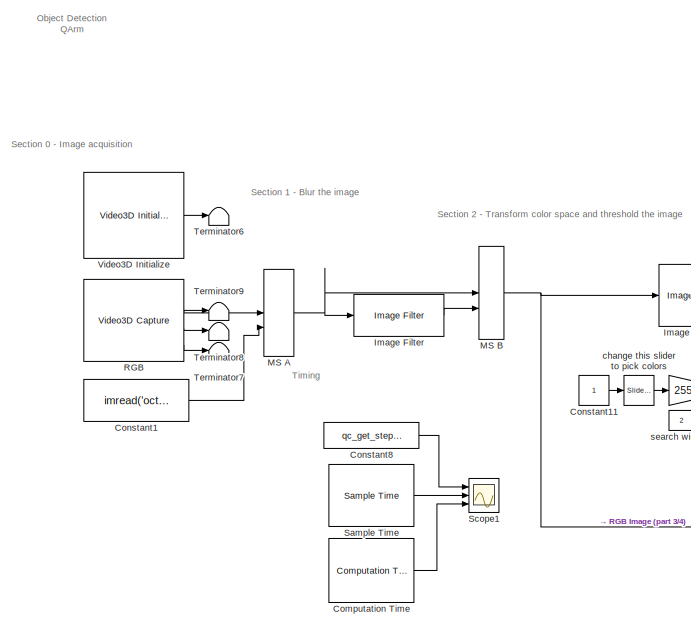
[diagram: root canvas - part 1/4, left side, full height]
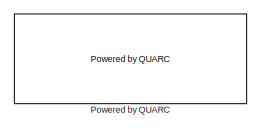
[diagram: root canvas - part 2/4, top right region]
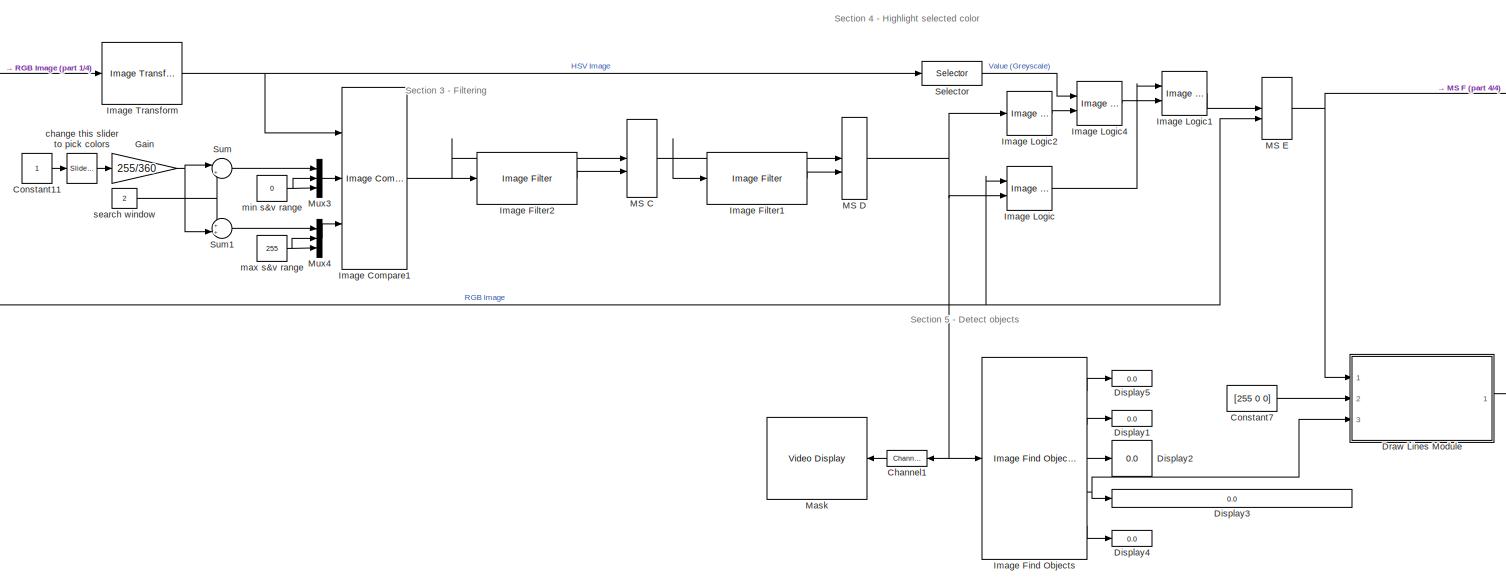
[diagram: root canvas - part 3/4, central region]
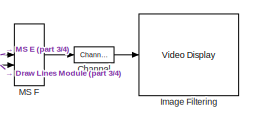
[diagram: root canvas - part 4/4, bottom right region]
MODEL slx_b4bb0a352ea1
KIND model
CONFIG AbsTol = auto
CONFIG EnableMultiTasking = on
CONFIG FixedStep = 1/30
CONFIG MaxStep = auto
CONFIG MinStep = auto
CONFIG RelTol = 1e-3
CONFIG SampleTimeConstraint = Unconstrained
CONFIG SolverName = ode4
CONFIG StartTime = 0.0
CONFIG StopTime = inf
BLOCK [Reference] Channel  REF=quarc_library/Signal Routing/Channel
  Ports = [1, 1]
  SourceBlock = quarc_library/Signal Routing/Channel
  SourceProductName = QUARC Targets
  SourceType = Channel
BLOCK [Reference] Channel1  REF=quarc_library/Signal Routing/Channel
  NameLocation = top
  Ports = [1, 1]
  SourceBlock = quarc_library/Signal Routing/Channel
  SourceProductName = QUARC Targets
  SourceType = Channel
BLOCK [Reference] Computation Time  REF=quarc_library/Sources/Time/Computation Time
  Ports = [0, 1]
  SourceBlock = quarc_library/Sources/Time/Computation Time
  SourceProductName = QUARC Targets
  SourceType = Computation Time
BLOCK [Constant] Constant1
  Value = imread('octopus.jpg');
BLOCK [Constant] Constant11
BLOCK [Constant] Constant7
  Value = [255 0 0]
BLOCK [Constant] Constant8
  Value = qc_get_step_size
BLOCK [Display] Display1
  Decimation = 1
  Ports = [1]
BLOCK [Display] Display2
  Decimation = 1
  Ports = [1]
BLOCK [Display] Display3
  Decimation = 1
  Ports = [1]
BLOCK [Display] Display4
  Decimation = 1
  Ports = [1]
BLOCK [Display] Display5
  Decimation = 1
  Ports = [1]
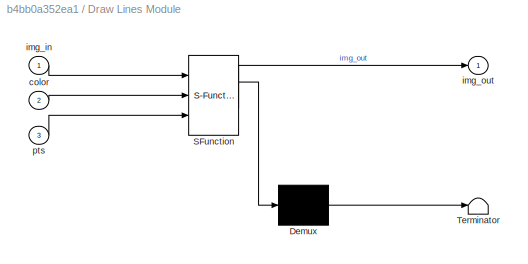
BLOCK [SubSystem] Draw Lines Module
  ErrorFcn = Stateflow.Translate.translate
  PermitHierarchicalResolution = ExplicitOnly
  Ports = [3, 1]
  SFBlockType = MATLAB Function
  TreatAsAtomicUnit = on
BLOCK [Demux] Draw Lines Module/ Demux 
  Outputs = 1
  Ports = [1, 1]
BLOCK [S-Function] Draw Lines Module/ SFunction 
  EnableBusSupport = off
  FunctionName = sf_sfun
  PortCounts = [3 2]
  Ports = [3, 2]
  SFcnIsStateOwnerBlock = off
  SFunctionDeploymentMode = off
  Tag = Stateflow S-Function 1
BLOCK [Terminator] Draw Lines Module/ Terminator 
BLOCK [Inport] Draw Lines Module/color
  Port = 2
BLOCK [Inport] Draw Lines Module/img_in
BLOCK [Outport] Draw Lines Module/img_out
  VectorParamsAs1DForOutWhenUnconnected = off
BLOCK [Inport] Draw Lines Module/pts
  Port = 3
BLOCK [Gain] Gain
  Gain = 255/360
  NameLocation = top
BLOCK [Reference] Image Compare1  REF=quarc_library/Image Processing/Generic/Image Compare
  Ports = [3, 1]
  SourceBlock = quarc_library/Image Processing/Generic/Image Compare
  SourceProductName = QUARC Targets
  SourceType = Image Compare
BLOCK [Reference] Image Filter  REF=quarc_library/Image Processing/Generic/Image Filter
  AttributesFormatString = (%<filter_type>)
  Ports = [1, 1]
  SourceBlock = quarc_library/Image Processing/Generic/Image Filter
  SourceProductName = QUARC Targets
  SourceType = Image Filter
BLOCK [Reference] Image Filter1  REF=quarc_library/Image Processing/Generic/Image Filter
  AttributesFormatString = (%<filter_type>)
  Ports = [1, 1]
  SourceBlock = quarc_library/Image Processing/Generic/Image Filter
  SourceProductName = QUARC Targets
  SourceType = Image Filter
BLOCK [Reference] Image Filter2  REF=quarc_library/Image Processing/Generic/Image Filter
  AttributesFormatString = (%<filter_type>)
  Ports = [1, 1]
  SourceBlock = quarc_library/Image Processing/Generic/Image Filter
  SourceProductName = QUARC Targets
  SourceType = Image Filter
BLOCK [Reference] Image Filtering   REF=quarc_library/Multimedia/Video Display
  Ports = [1]
  SourceBlock = quarc_library/Multimedia/Video Display
  SourceProductName = QUARC Targets
  SourceType = Video Display
  Tag = object_detection_/Image Filtering
  UserDataPersistent = on
BLOCK [Reference] Image Find Objects  REF=quarc_library/Image Processing/Generic/Image Find Objects
  Ports = [1, 5]
  SourceBlock = quarc_library/Image Processing/Generic/Image Find Objects
  SourceProductName = QUARC Targets
  SourceType = Image Find Objects
BLOCK [Reference] Image Logic  REF=quarc_library/Image Processing/Generic/Image Logic
  AttributesFormatString = (%<algorithm>)
  Ports = [2, 1]
  SourceBlock = quarc_library/Image Processing/Generic/Image Logic
  SourceProductName = QUARC Targets
  SourceType = Image Logic
BLOCK [Reference] Image Logic1  REF=quarc_library/Image Processing/Generic/Image Logic
  AttributesFormatString = (%<algorithm>)
  Ports = [2, 1]
  SourceBlock = quarc_library/Image Processing/Generic/Image Logic
  SourceProductName = QUARC Targets
  SourceType = Image Logic
BLOCK [Reference] Image Logic2  REF=quarc_library/Image Processing/Generic/Image Logic
  AttributesFormatString = (%<algorithm>)
  Ports = [1, 1]
  SourceBlock = quarc_library/Image Processing/Generic/Image Logic
  SourceProductName = QUARC Targets
  SourceType = Image Logic
BLOCK [Reference] Image Logic4  REF=quarc_library/Image Processing/Generic/Image Logic
  AttributesFormatString = (%<algorithm>)
  Ports = [2, 1]
  SourceBlock = quarc_library/Image Processing/Generic/Image Logic
  SourceProductName = QUARC Targets
  SourceType = Image Logic
BLOCK [Reference] Image Transform  REF=quarc_library/Image Processing/Generic/Image Transform
  AttributesFormatString = (%<algorithm>)
  Ports = [1, 1]
  SourceBlock = quarc_library/Image Processing/Generic/Image Transform
  SourceProductName = QUARC Targets
  SourceType = Image Transform
BLOCK [ManualSwitch] MS A
  NameLocation = top
BLOCK [ManualSwitch] MS B
  NameLocation = top
BLOCK [ManualSwitch] MS C
BLOCK [ManualSwitch] MS D
  NameLocation = top
BLOCK [ManualSwitch] MS E
  CurrentSetting = 0
  NameLocation = top
BLOCK [ManualSwitch] MS F
  NameLocation = top
BLOCK [Reference] Mask  REF=quarc_library/Multimedia/Video Display
  NameLocation = top
  Ports = [1]
  SourceBlock = quarc_library/Multimedia/Video Display
  SourceProductName = QUARC Targets
  SourceType = Video Display
  Tag = object_detection_/Mask
  UserDataPersistent = on
BLOCK [Mux] Mux3
  DisplayOption = bar
  Inputs = 3
  Ports = [3, 1]
BLOCK [Mux] Mux4
  DisplayOption = bar
  Inputs = 3
  Ports = [3, 1]
BLOCK [Reference] Powered by QUARC  REF=quarc_library/Logos/Powered by QUARC
  Ports = []
  SourceBlock = quarc_library/Logos/Powered by QUARC
  SourceProductName = QUARC Targets
  SourceType = Powered by QUARC
BLOCK [Reference] RGB  REF=quarc_library/Multimedia/Video3D Capture
  Ports = [0, 4]
  SourceBlock = quarc_library/Multimedia/Video3D Capture
  SourceProductName = QUARC Targets
  SourceType = Video3D Capture
  UserDataPersistent = on
BLOCK [Reference] Sample Time  REF=quarc_library/Sources/Time/Sample Time
  Ports = [0, 1]
  Priority = -99
  SourceBlock = quarc_library/Sources/Time/Sample Time
  SourceProductName = QUARC Targets
  SourceType = Sample Time
BLOCK [Scope] Scope1
  Floating = off
  NumInputPorts = 3
  Ports = [3]
  ScopeSpecificationString = Simulink.scopes.TimeScopeBlockCfg('CurrentConfiguration', extmgr.ConfigurationSet(extmgr.Configuration('Core','General UI',true),extmgr.Configuration('Core','Source UI',true),extmgr.Configuration('Sources','WiredSimulink',true),extmgr.Configuration('Visuals','Time Domain',true,'SerializedDisplays',{struct('MinYLimReal','-0.01344','MaxYLimReal','0.45223','YLabelReal','','MinYLimMag','0.00000','MaxY...<+1383ch>
BLOCK [Selector] Selector
  IndexOptions = Select all,Select all,Index vector (dialog)
  Indices = [1 3],1,3
  InputPortWidth = 3
  NumberOfDimensions = 3
  OutputSizes = 1,1,1
  Ports = [1, 1]
BLOCK [Sum] Sum
  Inputs = |+-
  Ports = [2, 1]
BLOCK [Sum] Sum1
  Inputs = ++|
  Ports = [2, 1]
BLOCK [Terminator] Terminator6
BLOCK [Terminator] Terminator7
BLOCK [Terminator] Terminator8
BLOCK [Terminator] Terminator9
BLOCK [Reference] Video3D Initialize  REF=quarc_library/Multimedia/Video3D Initialize
  Ports = [0, 1]
  SourceBlock = quarc_library/Multimedia/Video3D Initialize
  SourceProductName = QUARC Targets
  SourceType = Video3D Initialize
BLOCK [Reference] change this slider to pick colors  REF=simulink/Math
Operations/Slider
Gain
  NameLocation = top
  Ports = [1, 1]
  SourceBlock = simulink/Math\nOperations/Slider\nGain
  SourceType = Slider Gain
BLOCK [Constant] max s&v range
  Value = 255
BLOCK [Constant] min s&v range
  Value = 0
BLOCK [Constant] search window
  Value = 2
ANNOTATION (root): Object Detection QArm
ANNOTATION (root): Section 0 - Image acquisition
ANNOTATION (root): Section 1 - Blur the image
ANNOTATION (root): Section 2 - Transform color space and threshold the image
ANNOTATION (root): Section 3 - Filtering
ANNOTATION (root): Section 4 - Highlight selected color
ANNOTATION (root): Section 5 - Detect objects
ANNOTATION (root): Timing
LINE Channel1:1 -> Mask:1
LINE Channel:1 -> Image Filtering :1
LINE Computation Time:1 -> Scope1:3
LINE Constant11:1 -> change this slider to pick colors:1
LINE Constant1:1 -> MS A:2
LINE Constant7:1 -> Draw Lines Module:2
LINE Constant8:1 -> Scope1:1
LINE Draw Lines Module:1 -> MS F:2
NET Gain:1 -> Sum1:2, Sum:1
NET Image Compare1:1 -> Image Filter2:1, MS C:1
LINE Image Filter1:1 -> MS D:2
LINE Image Filter2:1 -> MS C:2
LINE Image Filter:1 -> MS B:2
LINE Image Find Objects:1 -> Display5:1
LINE Image Find Objects:2 -> Display1:1
LINE Image Find Objects:3 -> Display2:1
NET Image Find Objects:4 -> Display3:1, Draw Lines Module:3
LINE Image Find Objects:5 -> Display4:1
LINE Image Logic1:1 -> MS E:1
LINE Image Logic2:1 -> Image Logic4:2
LINE Image Logic4:1 -> Image Logic1:2
LINE Image Logic:1 -> Image Logic1:1
NET Image Transform:1 -> Image Compare1:1, Selector:1
NET MS A:1 -> Image Filter:1, MS B:1
NET MS B:1 -> Image Logic:1, Image Transform:1, MS E:2
NET MS C:1 -> Image Filter1:1, MS D:1
NET MS D:1 -> Channel1:1, Image Find Objects:1, Image Logic2:1, Image Logic:2
NET MS E:1 -> Draw Lines Module:1, MS F:1
LINE MS F:1 -> Channel:1
LINE Mux3:1 -> Image Compare1:2
LINE Mux4:1 -> Image Compare1:3
LINE RGB:1 -> MS A:1
LINE RGB:2 -> Terminator9:1
LINE RGB:3 -> Terminator8:1
LINE RGB:4 -> Terminator7:1
LINE Sample Time:1 -> Scope1:2
LINE Selector:1 -> Image Logic4:1
LINE Sum1:1 -> Mux4:1
LINE Sum:1 -> Mux3:1
LINE Video3D Initialize:1 -> Terminator6:1
LINE change this slider to pick colors:1 -> Gain:1
NET max s&v range:1 -> Mux4:2, Mux4:3
NET min s&v range:1 -> Mux3:2, Mux3:3
NET search window:1 -> Sum1:1, Sum:2
note: NET lines group one-source signal fan-out (src -> all destinations, sorted); 1:1 wires keep LINE
CHART Draw Lines Module states=1 transitions=1
  STATE_LABEL 'eML_blk_kernel()'
  STATE_LABEL 'SCRIPT:\nfunction img_out = drawLines(img_in, color, pts)\n\n% Draw lines connecting the points using the provided color\n\n% Inputs:\n% img_in    : Input RGB Image (size = m by n)\n% color     : 1x3 matrix of RGB color values for each marker\n% pts       : p x-y pairs of points (px) where markers are to be drawn\n\n% Outputs:\n% img_out   : Output RGB Image with the markers drawn in (size = m by n)\n\n%% Init...<+1060ch>'
CHART  states=0 transitions=0
